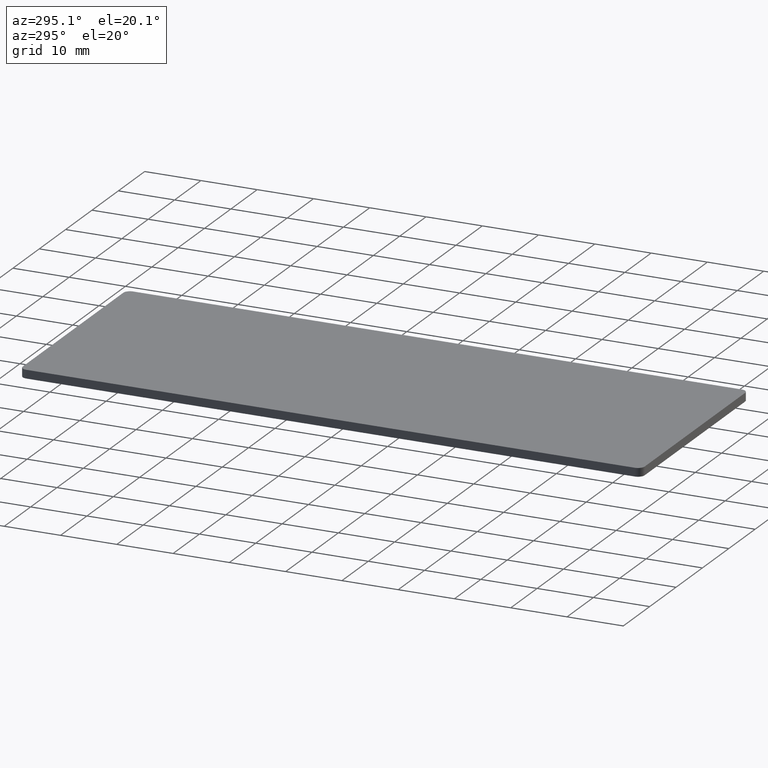
[diagram: clean part render]
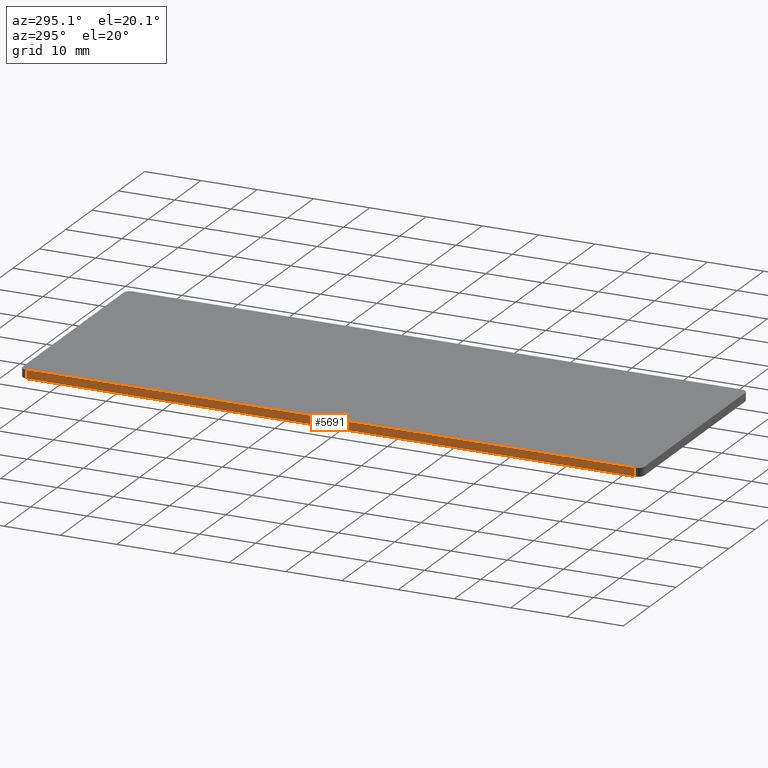
[diagram: same view with one face highlighted and labeled with its STEP entity id]
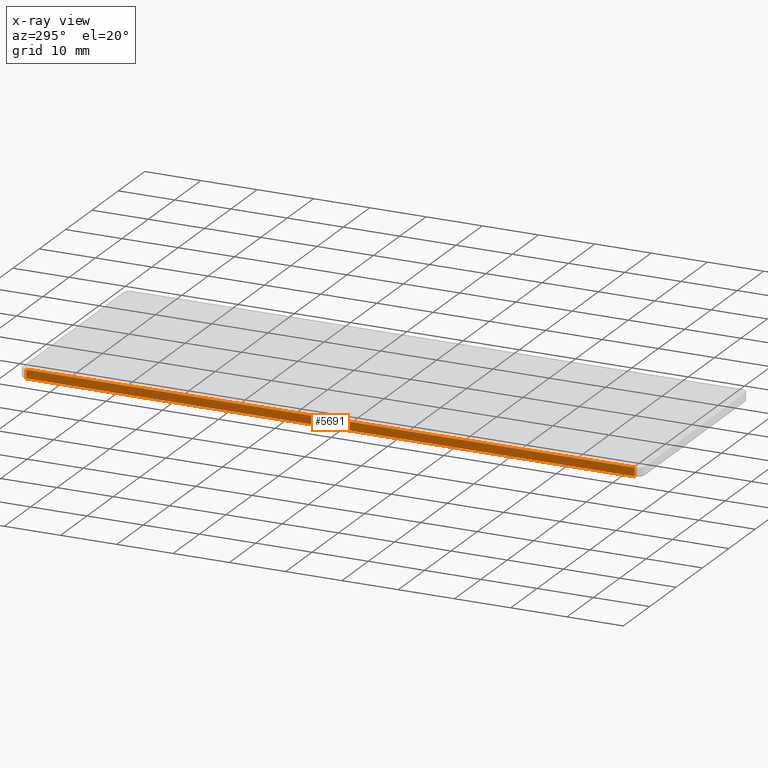
[diagram: x-ray of the same camera — body ghosted, the highlighted face saturated]
A machine part, auxiliary view. The second image highlights one B-rep face of the part: STEP entity #5691.
The next image is the same camera in x-ray: the body ghosted, the highlighted face saturated — about 0% of this face is hidden behind the body in this view.
In plain terms, the highlighted planar face has unit normal (1, 0, -0).
Its self-contained STEP definition (entity closure, byte-faithful):
#1096 = LINE ( 'NONE', #11162, #12367 ) ;
#1139 = CARTESIAN_POINT ( 'NONE',  ( -20.25000000000000700, 55.25000000000000000, 1.500000000000000000 ) ) ;
#1224 = VECTOR ( 'NONE', #7146, 1000.000000000000000 ) ;
#1408 = DIRECTION ( 'NONE',  ( -1.255908398897235900E-016, 1.000000000000000000, 0.0000000000000000000 ) ) ;
#1576 = CARTESIAN_POINT ( 'NONE',  ( -20.25000000000000700, 55.25000000000000000, 0.0000000000000000000 ) ) ;
#1589 = VERTEX_POINT ( 'NONE', #3795 ) ;
#1630 = DIRECTION ( 'NONE',  ( 0.0000000000000000000, 0.0000000000000000000, -1.000000000000000000 ) ) ;
#2010 = VECTOR ( 'NONE', #10889, 1000.000000000000000 ) ;
#2291 = DIRECTION ( 'NONE',  ( 1.000000000000000000, 1.255908398897235900E-016, -0.0000000000000000000 ) ) ;
#2402 = ORIENTED_EDGE ( 'NONE', *, *, #7711, .T. ) ;
#3114 = VERTEX_POINT ( 'NONE', #11514 ) ;
#3724 = CARTESIAN_POINT ( 'NONE',  ( -20.25000000000000700, 54.05000000000000400, 0.0000000000000000000 ) ) ;
#3795 = CARTESIAN_POINT ( 'NONE',  ( -20.25000000000000700, 54.05000000000000400, 1.500000000000000000 ) ) ;
#4376 = CARTESIAN_POINT ( 'NONE',  ( -20.24999999999999300, -54.05000000000000400, 1.500000000000000000 ) ) ;
#5059 = ORIENTED_EDGE ( 'NONE', *, *, #5815, .T. ) ;
#5152 = CARTESIAN_POINT ( 'NONE',  ( -20.25000000000000700, 55.25000000000000000, 1.500000000000000000 ) ) ;
#5691 = ADVANCED_FACE ( 'NONE', ( #11624 ), #11091, .F. ) ;
#5815 = EDGE_CURVE ( 'NONE', #9021, #3114, #6008, .T. ) ;
#6008 = LINE ( 'NONE', #1576, #12388 ) ;
#6476 = DIRECTION ( 'NONE',  ( 1.255908398897235900E-016, -1.000000000000000000, 0.0000000000000000000 ) ) ;
#7146 = DIRECTION ( 'NONE',  ( 1.255908398897235900E-016, -1.000000000000000000, 0.0000000000000000000 ) ) ;
#7466 = AXIS2_PLACEMENT_3D ( 'NONE', #5152, #2291, #1408 ) ;
#7711 = EDGE_CURVE ( 'NONE', #1589, #9021, #1096, .T. ) ;
#7732 = VERTEX_POINT ( 'NONE', #4376 ) ;
#7810 = LINE ( 'NONE', #10931, #2010 ) ;
#8021 = EDGE_CURVE ( 'NONE', #3114, #7732, #7810, .T. ) ;
#9021 = VERTEX_POINT ( 'NONE', #3724 ) ;
#10055 = ORIENTED_EDGE ( 'NONE', *, *, #11529, .F. ) ;
#10323 = EDGE_LOOP ( 'NONE', ( #10055, #2402, #5059, #11293 ) ) ;
#10889 = DIRECTION ( 'NONE',  ( 0.0000000000000000000, -0.0000000000000000000, 1.000000000000000000 ) ) ;
#10931 = CARTESIAN_POINT ( 'NONE',  ( -20.24999999999999300, -54.05000000000000400, 1.500000000000000000 ) ) ;
#11091 = PLANE ( 'NONE',  #7466 ) ;
#11162 = CARTESIAN_POINT ( 'NONE',  ( -20.25000000000000700, 54.05000000000000400, 0.0000000000000000000 ) ) ;
#11271 = LINE ( 'NONE', #1139, #1224 ) ;
#11293 = ORIENTED_EDGE ( 'NONE', *, *, #8021, .T. ) ;
#11514 = CARTESIAN_POINT ( 'NONE',  ( -20.24999999999999300, -54.05000000000000400, 0.0000000000000000000 ) ) ;
#11529 = EDGE_CURVE ( 'NONE', #1589, #7732, #11271, .T. ) ;
#11624 = FACE_OUTER_BOUND ( 'NONE', #10323, .T. ) ;
#12367 = VECTOR ( 'NONE', #1630, 1000.000000000000000 ) ;
#12388 = VECTOR ( 'NONE', #6476, 1000.000000000000000 ) ;